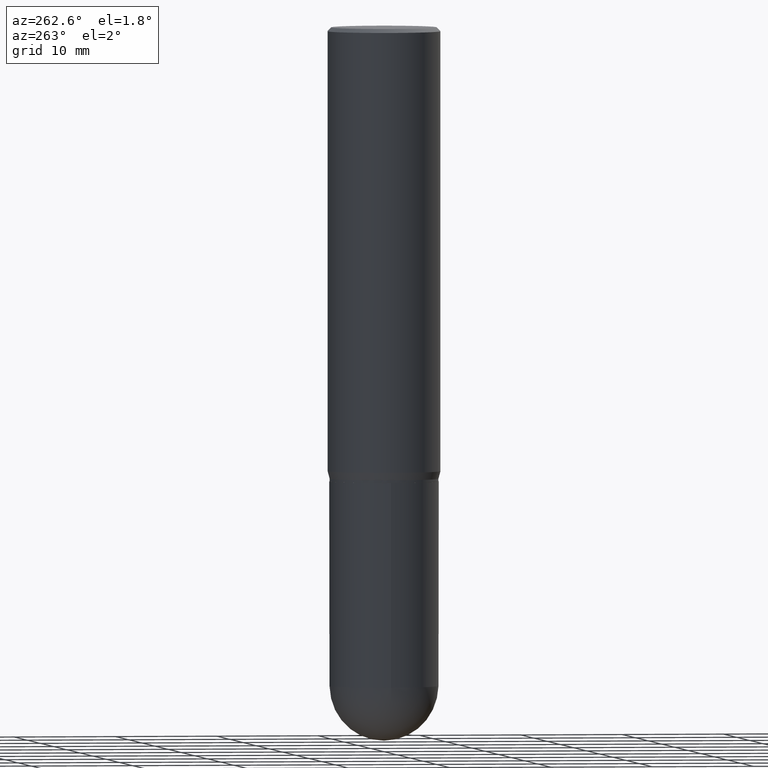
[diagram: clean part render]
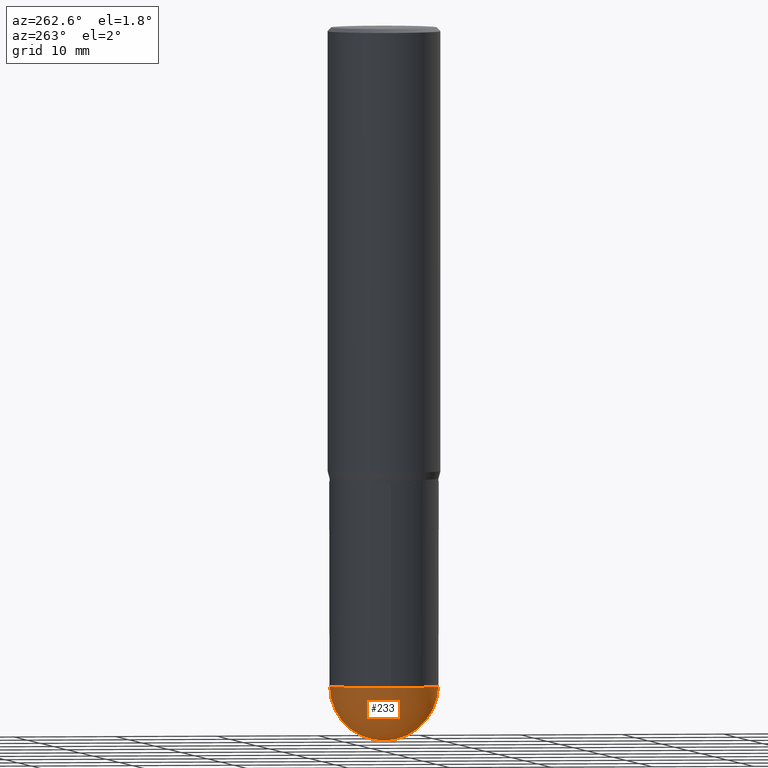
[diagram: same view with one face highlighted and labeled with its STEP entity id]
A machine part, auxiliary view. The second image highlights one B-rep face of the part: STEP entity #233.
In plain terms, the highlighted spherical surface has radius 5.3581 mm.
Its self-contained STEP definition (entity closure, byte-faithful):
#53 = VERTEX_POINT ( 'NONE', #434 ) ;
#63 = AXIS2_PLACEMENT_3D ( 'NONE', #379, #278, #209 ) ;
#100 = ORIENTED_EDGE ( 'NONE', *, *, #130, .F. ) ;
#105 = ORIENTED_EDGE ( 'NONE', *, *, #123, .F. ) ;
#110 = VERTEX_POINT ( 'NONE', #403 ) ;
#123 = EDGE_CURVE ( 'NONE', #225, #53, #477, .T. ) ;
#128 = DIRECTION ( 'NONE',  ( -2.445468806185136597E-29, 3.491481338843145583E-15, 1.000000000000000000 ) ) ;
#130 = EDGE_CURVE ( 'NONE', #338, #110, #442, .T. ) ;
#157 = CIRCLE ( 'NONE', #468, 0.2109500000000001096 ) ;
#163 = EDGE_CURVE ( 'NONE', #110, #225, #479, .T. ) ;
#164 = CARTESIAN_POINT ( 'NONE',  ( 6.191127839474132236E-29, -8.890879617617701491E-15, -2.539049999999999585 ) ) ;
#172 = AXIS2_PLACEMENT_3D ( 'NONE', #164, #473, #398 ) ;
#179 = DIRECTION ( 'NONE',  ( 1.000000000000000000, -6.982962677686265133E-15, 0.000000000000000000 ) ) ;
#182 = CARTESIAN_POINT ( 'NONE',  ( 6.191127839474132236E-29, -8.890879617617701491E-15, -2.539049999999999585 ) ) ;
#206 = AXIS2_PLACEMENT_3D ( 'NONE', #430, #128, #179 ) ;
#209 = DIRECTION ( 'NONE',  ( 6.982962677686265922E-15, 1.000000000000000000, 0.000000000000000000 ) ) ;
#214 = DIRECTION ( 'NONE',  ( -1.000000000000000000, 7.105427357601001070E-15, -4.926315508542082329E-29 ) ) ;
#219 = CARTESIAN_POINT ( 'NONE',  ( 6.716019350574006308E-29, -9.614490643932656644E-15, -2.750000000000000000 ) ) ;
#225 = VERTEX_POINT ( 'NONE', #234 ) ;
#226 = ORIENTED_EDGE ( 'NONE', *, *, #408, .T. ) ;
#233 = ADVANCED_FACE ( 'NONE', ( #433 ), #355, .T. ) ;
#234 = CARTESIAN_POINT ( 'NONE',  ( -0.2109500000000000541, -5.988679117096665555E-15, -2.539050000000000473 ) ) ;
#278 = DIRECTION ( 'NONE',  ( 1.000000000000000000, -6.982962677686265922E-15, 4.883557194083112340E-29 ) ) ;
#296 = CARTESIAN_POINT ( 'NONE',  ( 6.209167572344372023E-29, -8.865045693389689499E-15, -2.539050000000000473 ) ) ;
#336 = DIRECTION ( 'NONE',  ( -7.105427357601001070E-15, -1.000000000000000000, 0.000000000000000000 ) ) ;
#338 = VERTEX_POINT ( 'NONE', #219 ) ;
#339 = DIRECTION ( 'NONE',  ( 1.000000000000000000, -6.982962677686265133E-15, 0.000000000000000000 ) ) ;
#340 = EDGE_LOOP ( 'NONE', ( #100, #226, #105, #454 ) ) ;
#347 = AXIS2_PLACEMENT_3D ( 'NONE', #296, #383, #339 ) ;
#355 = SPHERICAL_SURFACE ( 'NONE', #172, 0.2109500000000001096 ) ;
#379 = CARTESIAN_POINT ( 'NONE',  ( 6.191127839474132236E-29, -8.890879617617701491E-15, -2.539049999999999585 ) ) ;
#383 = DIRECTION ( 'NONE',  ( -2.445468806185136597E-29, 3.491481338843145583E-15, 1.000000000000000000 ) ) ;
#398 = DIRECTION ( 'NONE',  ( 6.982962677686265133E-15, 1.000000000000000000, -2.590043132177541277E-15 ) ) ;
#403 = CARTESIAN_POINT ( 'NONE',  ( 1.473055976857980082E-15, 0.2109499999999912001, -2.539050000000000917 ) ) ;
#408 = EDGE_CURVE ( 'NONE', #338, #53, #157, .T. ) ;
#430 = CARTESIAN_POINT ( 'NONE',  ( 6.209167572344372023E-29, -8.865045693389689499E-15, -2.539050000000000473 ) ) ;
#433 = FACE_OUTER_BOUND ( 'NONE', #340, .T. ) ;
#434 = CARTESIAN_POINT ( 'NONE',  ( -1.498889901085869604E-15, -0.2109500000000089637, -2.539049999999999585 ) ) ;
#442 = CIRCLE ( 'NONE', #63, 0.2109500000000001096 ) ;
#454 = ORIENTED_EDGE ( 'NONE', *, *, #163, .F. ) ;
#468 = AXIS2_PLACEMENT_3D ( 'NONE', #182, #214, #336 ) ;
#473 = DIRECTION ( 'NONE',  ( -1.000000000000000000, 6.982962677686265133E-15, -4.883557194083112340E-29 ) ) ;
#477 = CIRCLE ( 'NONE', #206, 0.2109500000000000541 ) ;
#479 = CIRCLE ( 'NONE', #347, 0.2109500000000000541 ) ;